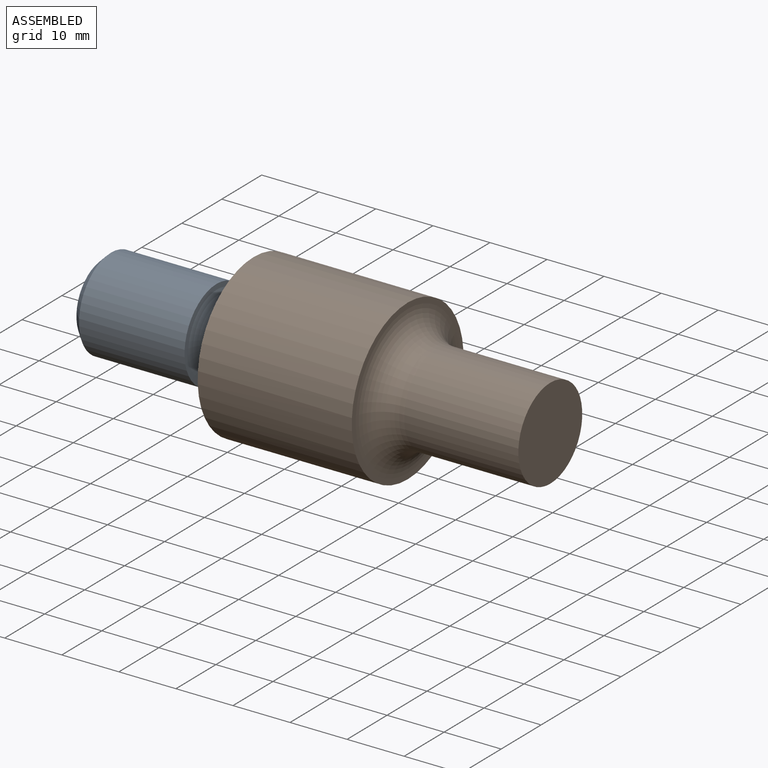
[diagram: assembled view]
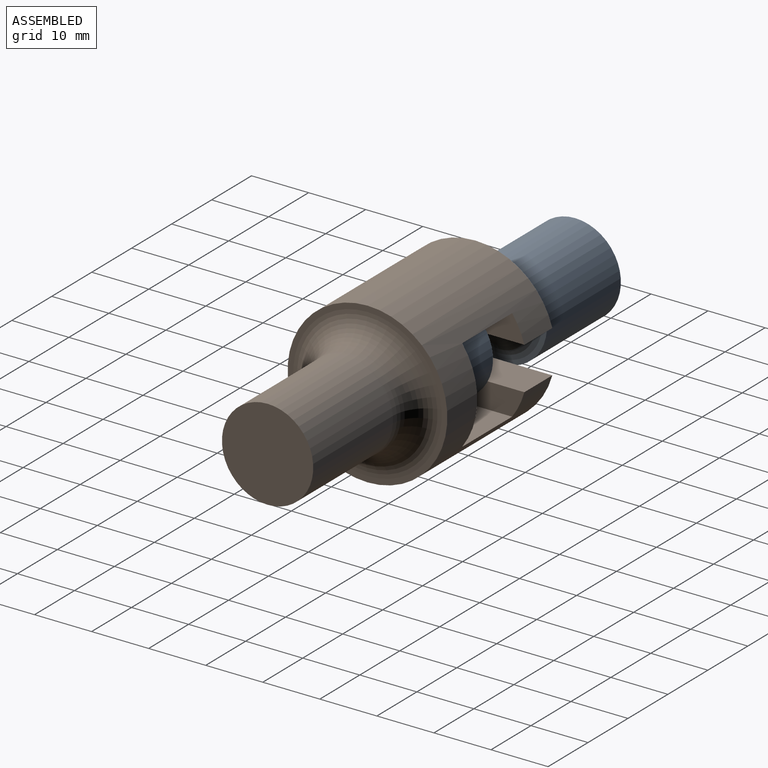
[diagram: assembled view, second angle]
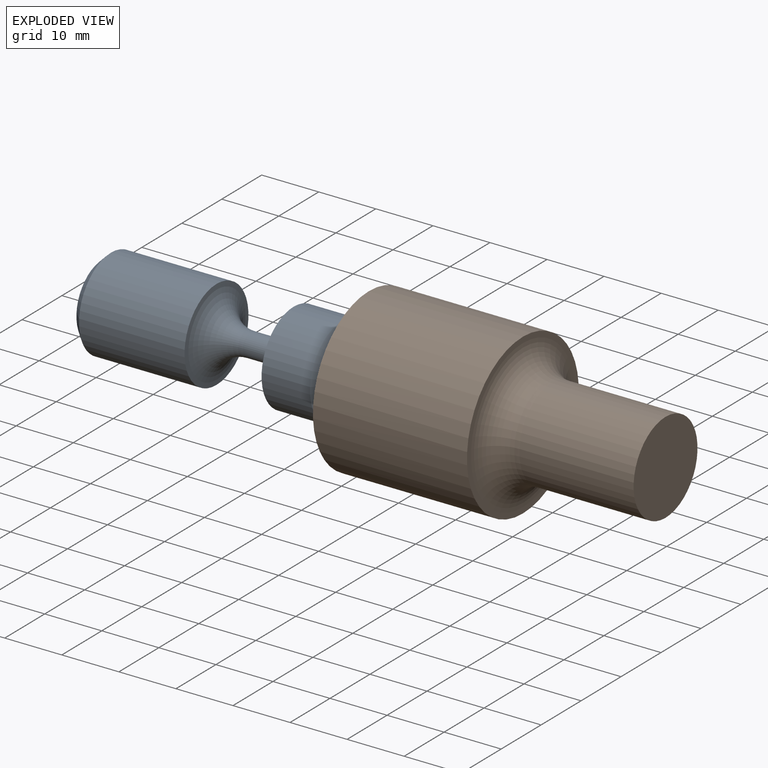
[diagram: exploded view]
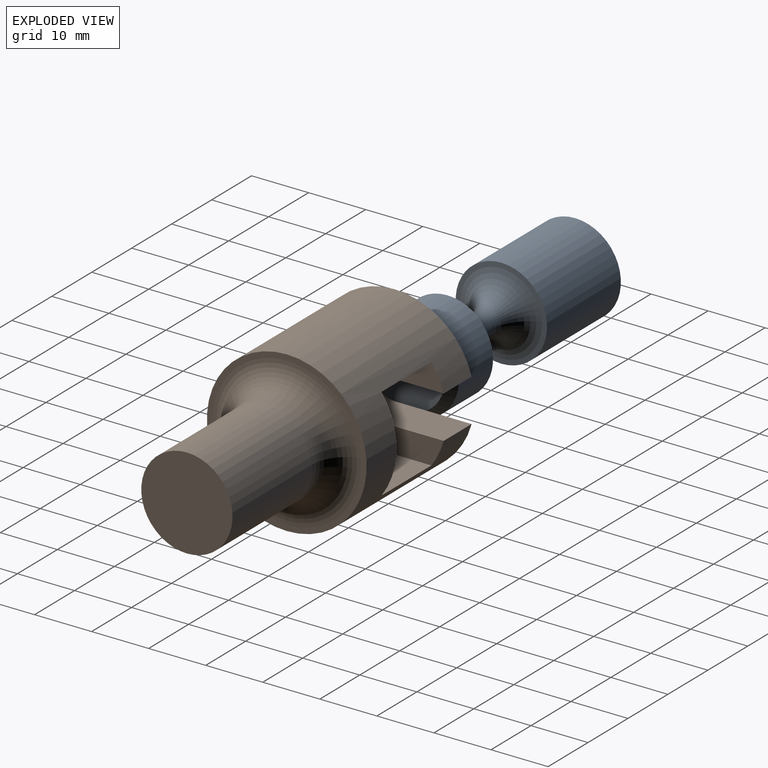
[diagram: exploded view, second angle]
ASSEMBLY  parts=2 mates=2
PART A: 10 faces, bbox 43.5x17.3x17.3 mm
  f0: cylinder r=8mm len=18.5mm, axis (-1,0,0), area 929.9mm2, adj f1,f9
  f1: cone r=6.5mm half-angle=45deg, axis (1,0,0), area 96.6mm2, adj f0,f2
  f2: plane 13x13mm, normal (-1,0,0), area 132.7mm2, adj f1
  f3: plane 13x13mm, normal (1,0,0), area 132.7mm2, adj f4
  f4: cone r=8mm half-angle=45deg, axis (-1,0,0), area 96.6mm2, adj f3,f5
  f5: cylinder r=8mm len=16mm, axis (-1,0,0), area 427.3mm2, adj f4,f6
  f6: plane 16x16mm, normal (-1,0,0), area 162.6mm2, adj f5,f7
  f7: torus R=3.5mm, axis (-1,0,0), area 37.7mm2, adj f6,f8
  f8: cylinder r=2mm len=6mm, axis (-1,0,0), area 75.4mm2, adj f7,f9
  f9: torus R=8mm, axis (-1,0,0), area 247.5mm2, adj f0,f8
PART B: 14 faces, bbox 52x28.1x28.1 mm
  f0: plane 28x27.49mm, normal (-1,0,0), area 489.9mm2, adj f1,f9,f10,f11
  f1: cylinder r=3.75mm len=7.5mm, axis (-1,0,0), area 82.5mm2, adj f0,f2,f10,f11
  f2: plane 21.69x16.4mm, normal (1,0,0), area 195.5mm2, adj f1,f3,f9,f10,f11,f12,f13
  f3: cylinder r=8.2mm len=16.4mm, axis (-1,0,0), area 322mm2, adj f2,f4,f12,f13
  f4: plane 22.2x16.4mm, normal (-1,0,0), area 321.3mm2, adj f3,f9,f12,f13
  f5: plane 16x16mm, normal (1,0,0), area 201.1mm2, adj f6
  f6: cylinder r=8mm len=20mm, axis (-1,0,0), area 1005.3mm2, adj f5,f7
  f7: torus R=13mm, axis (-1,0,0), area 484.4mm2, adj f6,f8
  f8: plane 28x28mm, normal (1,0,0), area 84.8mm2, adj f7,f9
  f9: cylinder r=14mm len=28mm, axis (-1,0,0), area 2102.9mm2, adj f0,f2,f4,f8,f10,f11,f12,f13
  f10: plane 13.49x7mm, normal (0,0,-1), area 94.4mm2, adj f0,f1,f2,f9
  f11: plane 13.49x7mm, normal (0,0,1), area 94.4mm2, adj f0,f1,f2,f9
  f12: plane 12.5x11.35mm, normal (0,0,1), area 141.8mm2, adj f2,f3,f4,f9
  f13: plane 12.5x11.35mm, normal (0,0,-1), area 141.8mm2, adj f2,f3,f4,f9
PLACE A t=(3.59,-14.99,-2.68)mm
PLACE B t=(8.09,-14.99,-2.68)mm
MATE cylindrical B.f1 <-> A.f0  axis (-1,0,0) through (1.09,-14.99,-2.68)mm
MATE planar B.f2 <-> A.f0  axis (1,0,0) through (8.09,-1.5,1.07)mm
